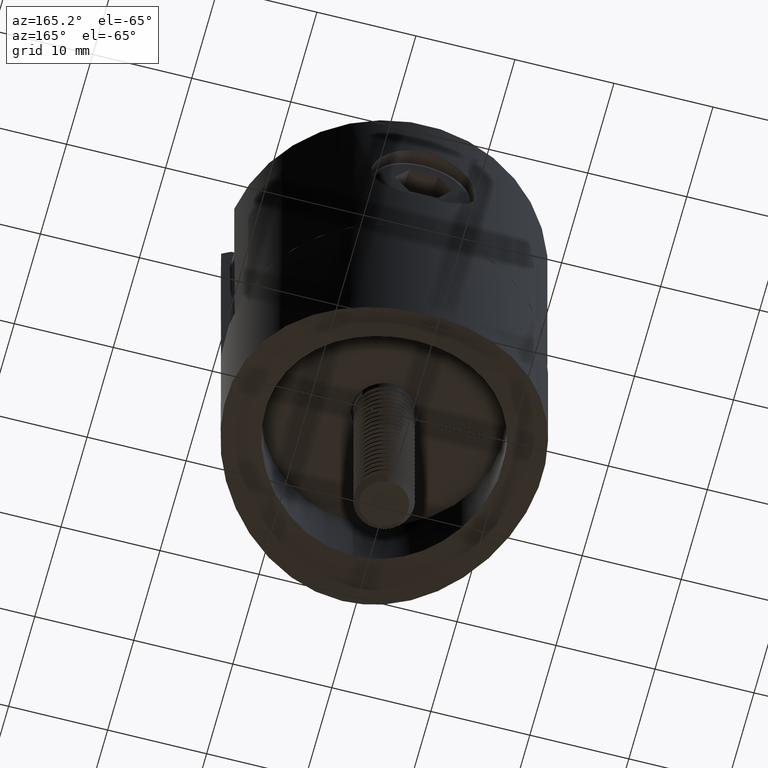
[diagram: clean part render]
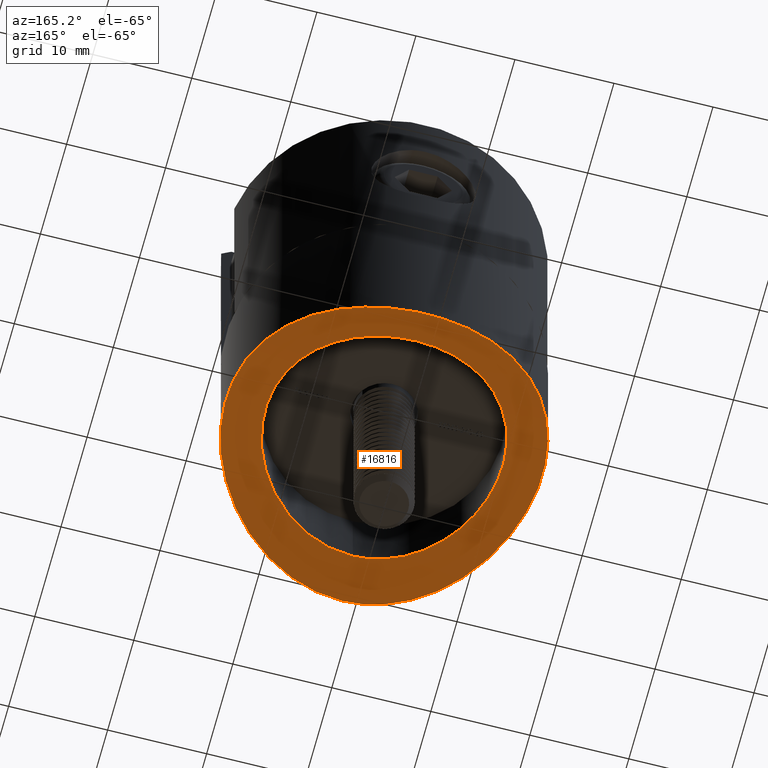
[diagram: same view with one face highlighted and labeled with its STEP entity id]
A machine part, auxiliary view. The second image highlights one B-rep face of the part: STEP entity #16816.
In plain terms, the highlighted cylindrical surface (partial cylindrical patch) has radius 30.15 mm, axis along (1, 0, 0).
Its self-contained STEP definition (entity closure, byte-faithful):
#12 = CARTESIAN_POINT ( 'NONE',  ( 11.58754901106626001, -3.144040531877585032, -0.1619639574629047618 ) ) ;
#208 = CARTESIAN_POINT ( 'NONE',  ( 11.22186866607503930, -4.268736720951023855, -0.3014944365157393724 ) ) ;
#276 = CARTESIAN_POINT ( 'NONE',  ( -7.322687040700339267, -9.514755709804125772, -1.539515491249845658 ) ) ;
#351 = CARTESIAN_POINT ( 'NONE',  ( 1.988812750522771955, 11.84073757494594936, -2.422274191090125761 ) ) ;
#426 = CARTESIAN_POINT ( 'NONE',  ( -10.74784757159862281, 5.351446329594613083, -0.4766383172247922184 ) ) ;
#493 = CARTESIAN_POINT ( 'NONE',  ( -0.7725920073446097547, 11.98168863400033857, -2.482990585800949113 ) ) ;
#565 = CARTESIAN_POINT ( 'NONE',  ( -9.030589511673484893, 7.941128271429761298, -1.058880358299142621 ) ) ;
#619 = B_SPLINE_CURVE_WITH_KNOTS ( 'NONE', 3,
 ( #17813, #11480, #19564, #14740, #21058, #6484, #9901, #8053, #16396, #16466, #6686, #19629, #3234, #13178, #3515, #9968, #3443, #5137, #17879, #208, #19493, #12, #11614, #13244, #9689, #14880, #13037, #14665, #19417, #4932, #16324, #6556, #18428, #7038, #19770, #15085, #11761, #13525, #16665, #15018, #8682, #3795, #20050, #15160, #6894, #351, #2001, #1931, #8545, #10113, #493, #5285, #13454, #11830, #2067, #13382, #18364, #3649, #18298, #10327, #10253, #565, #5417, #19908, #10183, #426, #13308, #3720, #5354, #11906, #16735, #6961, #8616, #19976, #2138, #16802, #11977, #2218, #13591, #3863, #15235, #5488, #6758, #14952, #18159, #8406, #10039, #276, #11688, #3585, #5208, #16597, #6828, #18233, #8467, #19842, #13666, #15587, #17158, #7178 ),
 .UNSPECIFIED., .T., .F.,
 ( 4, 2, 2, 2, 2, 2, 2, 2, 2, 2, 2, 2, 2, 2, 2, 2, 2, 2, 2, 2, 2, 2, 2, 2, 2, 2, 2, 2, 2, 2, 2, 2, 2, 2, 2, 2, 2, 2, 2, 2, 2, 2, 2, 2, 2, 2, 2, 2, 2, 4 ),
 ( 0.000000000000000000, 0.002368471333373011085, 0.003552707000059516628, 0.004736942666746022171, 0.007105414000119036726, 0.008289649666805540967, 0.009473885333492044342, 0.01065812100017854772, 0.01184235666686505282, 0.01421082800023805957, 0.01539506366692456468, 0.01657929933361106806, 0.01894777066698407134, 0.02013200633367057471, 0.02131624200035707462, 0.02368471333373008136, 0.02605318466710308117, 0.02723742033378958455, 0.02842165600047608098, 0.03079012733384908079, 0.03197436300053558417, 0.03315859866722208060, 0.03552707000059508041, 0.03671130566728157685, 0.03789554133396808022, 0.03907977700065458360, 0.04026401266734108697, 0.04263248400071407984, 0.04381671966740058322, 0.04500095533408707965, 0.04736942666746008640, 0.04973789800083307927, 0.05092213366751958264, 0.05210636933420607908, 0.05447484066757908583, 0.05565907633426558920, 0.05684331200095208564, 0.05921178333432509239, 0.06039601900101160270, 0.06158025466769810607, 0.06276449033438460945, 0.06394872600107112670, 0.06631719733444413345, 0.06750143300113063682, 0.06868566866781714020, 0.07105414000119016082, 0.07223837566787666420, 0.07342261133456315370, 0.07460684700124967095, 0.07579108266793617432 ),
 .UNSPECIFIED. ) ;
#638 = DIRECTION ( 'NONE',  ( 0.000000000000000000, 0.000000000000000000, -1.000000000000000000 ) ) ;
#985 = FACE_BOUND ( 'NONE', #5673, .T. ) ;
#994 = CARTESIAN_POINT ( 'NONE',  ( 9.347981288188343285, -12.99552223110337579, -2.942604852742185972 ) ) ;
#1211 = CARTESIAN_POINT ( 'NONE',  ( 8.057680282590142795, -13.86171697003095638, -3.367746590787450423 ) ) ;
#1281 = CARTESIAN_POINT ( 'NONE',  ( -9.734808961894675150, 12.70831711445434031, -2.806802622441028294 ) ) ;
#1350 = CARTESIAN_POINT ( 'NONE',  ( -13.56919194388549954, -8.493767896086113822, -1.217663812366957865 ) ) ;
#1421 = CARTESIAN_POINT ( 'NONE',  ( 2.172336556728580170, 15.88749318704707392, -4.524375341697302488 ) ) ;
#1486 = CARTESIAN_POINT ( 'NONE',  ( -15.86542686692702908, -2.088084433214437485, -0.07121767710406586016 ) ) ;
#1558 = CARTESIAN_POINT ( 'NONE',  ( -12.68438386877813251, -9.765989777195494881, -1.622323003073486536 ) ) ;
#1931 = CARTESIAN_POINT ( 'NONE',  ( 0.8056490428007292426, 11.97946526555242741, -2.482026307086182992 ) ) ;
#2001 = CARTESIAN_POINT ( 'NONE',  ( 1.593286608285616301, 11.90034017213796247, -2.447901521585993834 ) ) ;
#2067 = CARTESIAN_POINT ( 'NONE',  ( -3.878655975107199616, 11.38302881236338315, -2.229501667646038854 ) ) ;
#2138 = CARTESIAN_POINT ( 'NONE',  ( -11.92434088632173683, -1.563850244955632851, -0.03037443106780666341 ) ) ;
#2218 = CARTESIAN_POINT ( 'NONE',  ( -11.36312087890709854, -3.877490141077125863, -0.2479644043786736474 ) ) ;
#2569 = CARTESIAN_POINT ( 'NONE',  ( 1.078985052669396261, -16.00000000000000000, -4.595695078910870812 ) ) ;
#2641 = CARTESIAN_POINT ( 'NONE',  ( 15.87059087586888495, 2.100089571375525210, -0.06850774356989051961 ) ) ;
#2784 = CARTESIAN_POINT ( 'NONE',  ( 9.763319736821554073, -12.68624190333083490, -2.796585216935595142 ) ) ;
#2855 = CARTESIAN_POINT ( 'NONE',  ( 12.02736629144913039, 10.56452989736948211, -1.908315620603530993 ) ) ;
#2924 = CARTESIAN_POINT ( 'NONE',  ( -5.245362431886963606, -15.15138514278004322, -4.079498424652716615 ) ) ;
#2995 = CARTESIAN_POINT ( 'NONE',  ( -10.58561330700593039, -12.04171567547953892, -2.497960455768306609 ) ) ;
#3065 = CARTESIAN_POINT ( 'NONE',  ( -15.74066985114454553, -2.881321613796281600, -0.1368494295909413461 ) ) ;
#3135 = CARTESIAN_POINT ( 'NONE',  ( 4.254421522326797600, 15.43296921659310783, -4.248670770076388159 ) ) ;
#3206 = CARTESIAN_POINT ( 'NONE',  ( -2.147999614626995069, -15.86426675125117747, -4.511130830961285199 ) ) ;
#3234 = CARTESIAN_POINT ( 'NONE',  ( 8.209219941091026485, -8.761187590991552199, -1.299604186638225967 ) ) ;
#3443 = CARTESIAN_POINT ( 'NONE',  ( 9.744780998145234463, -7.013805673719166300, -0.8252518053713892021 ) ) ;
#3515 = CARTESIAN_POINT ( 'NONE',  ( 9.016834077157579230, -7.927645739926238555, -1.059262843862521120 ) ) ;
#3585 = CARTESIAN_POINT ( 'NONE',  ( -6.045073760728127965, -10.39512724240349328, -1.844988715706057603 ) ) ;
#3649 = CARTESIAN_POINT ( 'NONE',  ( -6.016993118291775744, 10.38989198362835786, -1.846080127120568237 ) ) ;
#3693 = CARTESIAN_POINT ( 'NONE',  ( 0.000000000000000000, -16.00000000000000000, -4.595695078910870812 ) ) ;
#3720 = CARTESIAN_POINT ( 'NONE',  ( -11.37397852455903369, 3.905184321878858889, -0.2449736969601668257 ) ) ;
#3795 = CARTESIAN_POINT ( 'NONE',  ( 5.340302310893995319, 10.75336932627156905, -1.982165412871909504 ) ) ;
#3863 = CARTESIAN_POINT ( 'NONE',  ( -10.92932449742695589, -4.970246140903692655, -0.4102433202275903579 ) ) ;
#4002 = CARTESIAN_POINT ( 'NONE',  ( 8.131516293641283255E-16, -16.00000000000000000, -4.595695078910871700 ) ) ;
#4215 = CARTESIAN_POINT ( 'NONE',  ( 10.55590290750044780, -12.03478540401365748, -2.503771067222689162 ) ) ;
#4296 = CARTESIAN_POINT ( 'NONE',  ( 14.96390526560158207, 5.688442302517764837, -0.5373328770635649176 ) ) ;
#4430 = CARTESIAN_POINT ( 'NONE',  ( 15.57105657986728353, -3.717881451341324972, -0.2255591916824621901 ) ) ;
#4493 = CARTESIAN_POINT ( 'NONE',  ( -1.078560265351375724, -15.97265067711983733, -4.578511928934581476 ) ) ;
#4565 = CARTESIAN_POINT ( 'NONE',  ( -3.648580903510718620, 15.58744285368677041, -4.341690479579437323 ) ) ;
#4632 = CARTESIAN_POINT ( 'NONE',  ( -8.066622110606839868, -13.82755415116819897, -3.356348059155455310 ) ) ;
#4699 = CARTESIAN_POINT ( 'NONE',  ( -2.609758756619656950, 15.79460909800114621, -4.467952993187623179 ) ) ;
#4704 = ORIENTED_EDGE ( 'NONE', *, *, #21088, .F. ) ;
#4772 = CARTESIAN_POINT ( 'NONE',  ( -5.166727558273070287, 15.15196072847016850, -4.083310846030086871 ) ) ;
#4932 = CARTESIAN_POINT ( 'NONE',  ( 11.61194887860643377, 3.128061193509684035, -0.1526738820396920937 ) ) ;
#5137 = CARTESIAN_POINT ( 'NONE',  ( 10.40137761311844322, -6.035582049094263546, -0.6027233715706339368 ) ) ;
#5208 = CARTESIAN_POINT ( 'NONE',  ( -5.360375647676671740, -10.76527996336022674, -1.985504278174215376 ) ) ;
#5228 = ORIENTED_EDGE ( 'NONE', *, *, #5551, .T. ) ;
#5285 = CARTESIAN_POINT ( 'NONE',  ( -1.563203420610724814, 11.90437549801485950, -2.449636889568122644 ) ) ;
#5354 = CARTESIAN_POINT ( 'NONE',  ( -11.60436651410400799, 3.156201335318151280, -0.1556167876162860286 ) ) ;
#5417 = CARTESIAN_POINT ( 'NONE',  ( -9.523131426970094182, 7.342531319289173020, -0.9002776579377624877 ) ) ;
#5488 = CARTESIAN_POINT ( 'NONE',  ( -10.38962417867643140, -6.017503546049741026, -0.6044984855176614991 ) ) ;
#5551 = EDGE_CURVE ( 'NONE', #12962, #12962, #619, .T. ) ;
#5673 = EDGE_LOOP ( 'NONE', ( #5228 ) ) ;
#5768 = CARTESIAN_POINT ( 'NONE',  ( 4.198435893910748895, -15.44843400711653203, -4.257895014907222553 ) ) ;
#5903 = CARTESIAN_POINT ( 'NONE',  ( 10.93479450630785266, -11.69152105008194553, -2.356429266868935279 ) ) ;
#6047 = CARTESIAN_POINT ( 'NONE',  ( 15.45464910874660980, 4.175346880858809229, -0.2861245740717265895 ) ) ;
#6114 = CARTESIAN_POINT ( 'NONE',  ( -12.00722806968189005, 10.62433934989705975, -1.923168405348637533 ) ) ;
#6247 = CARTESIAN_POINT ( 'NONE',  ( -8.513327938293816288, -13.55688562490649218, -3.217931215278059920 ) ) ;
#6320 = CARTESIAN_POINT ( 'NONE',  ( -12.99280433940191593, -9.351689605659986526, -1.483467739083009329 ) ) ;
#6388 = CARTESIAN_POINT ( 'NONE',  ( -0.4747260438797594184, 16.00178658817786115, -4.596813683114286064 ) ) ;
#6484 = CARTESIAN_POINT ( 'NONE',  ( 3.885978755221511705, -11.36028401606072613, -2.221840045623407089 ) ) ;
#6556 = CARTESIAN_POINT ( 'NONE',  ( 10.77293897728123007, 5.345333259755970623, -0.4683789715319758851 ) ) ;
#6686 = CARTESIAN_POINT ( 'NONE',  ( 7.320458205167397203, -9.516438573233353182, -1.540080751648398971 ) ) ;
#6758 = CARTESIAN_POINT ( 'NONE',  ( -10.18578774468801562, -6.356269247478546269, -0.6757576906719890975 ) ) ;
#6828 = CARTESIAN_POINT ( 'NONE',  ( -3.893557679914034342, -11.35760473106975077, -2.220752202648601514 ) ) ;
#6894 = CARTESIAN_POINT ( 'NONE',  ( 3.159256538333497843, 11.60400224174884443, -2.321974353454705042 ) ) ;
#6961 = CARTESIAN_POINT ( 'NONE',  ( -11.97958718190897009, 0.8058461534951278926, -0.008141183728601772418 ) ) ;
#7038 = CARTESIAN_POINT ( 'NONE',  ( 9.753008548260284627, 7.002150436307594816, -0.8225009920806044539 ) ) ;
#7163 = AXIS2_PLACEMENT_3D ( 'NONE', #10693, #13807, #638 ) ;
#7178 = CARTESIAN_POINT ( 'NONE',  ( 5.963111948670274387E-16, -12.00000000000000533, -2.490959886503656850 ) ) ;
#7386 = CARTESIAN_POINT ( 'NONE',  ( 9.807960649354527050, 12.68396374225127587, -2.790213268971612592 ) ) ;
#7523 = CARTESIAN_POINT ( 'NONE',  ( 14.35483286966861094, 7.144656730156513369, -0.8419789125931321783 ) ) ;
#7738 = CARTESIAN_POINT ( 'NONE',  ( -15.78656986799467710, -2.618411364351471704, -0.1127370661802067353 ) ) ;
#7817 = CARTESIAN_POINT ( 'NONE',  ( -15.14101137439050149, 5.275762512639045276, -0.4490030845204737719 ) ) ;
#7956 = CARTESIAN_POINT ( 'NONE',  ( 5.258795400126396125, 15.12024180592220013, -4.064876223263797606 ) ) ;
#8025 = CARTESIAN_POINT ( 'NONE',  ( -15.45661574893474821, 4.271535702109969357, -0.2853797541556595818 ) ) ;
#8053 = CARTESIAN_POINT ( 'NONE',  ( 5.345823586510354275, -10.77207880563740794, -1.988139923124309094 ) ) ;
#8167 = CARTESIAN_POINT ( 'NONE',  ( 0.000000000000000000, -12.00000000000000178, -2.490959886503655962 ) ) ;
#8406 = CARTESIAN_POINT ( 'NONE',  ( -8.216674337414604068, -8.754297363609172322, -1.297493442813552722 ) ) ;
#8467 = CARTESIAN_POINT ( 'NONE',  ( -2.759505177683312382, -11.68505071777813598, -2.356309104947240218 ) ) ;
#8545 = CARTESIAN_POINT ( 'NONE',  ( 0.4114582879468181020, 11.99943249448955918, -2.490713671951073405 ) ) ;
#8616 = CARTESIAN_POINT ( 'NONE',  ( -11.99954205327484225, 0.4091774364429863198, -0.0001822672547850000453 ) ) ;
#8682 = CARTESIAN_POINT ( 'NONE',  ( 6.030978729205846101, 10.38176652630970409, -1.843096584256994630 ) ) ;
#9031 = CARTESIAN_POINT ( 'NONE',  ( 7.179271993898176163, 14.33635146221261536, -3.622562466884024612 ) ) ;
#9110 = CARTESIAN_POINT ( 'NONE',  ( 2.134750117507572043, -15.89203472333664990, -4.527243523792710000 ) ) ;
#9246 = CARTESIAN_POINT ( 'NONE',  ( 15.12338735573147552, -5.250259088175047495, -0.4562113082828926358 ) ) ;
#9317 = CARTESIAN_POINT ( 'NONE',  ( 16.00128451681657538, 0.4942595994572297480, 0.0006816657416303562207 ) ) ;
#9463 = CARTESIAN_POINT ( 'NONE',  ( -16.00148916019686496, -0.4848154086778923011, 0.0007902649415198214657 ) ) ;
#9525 = CARTESIAN_POINT ( 'NONE',  ( -9.318566119652702540, 13.01653401029880719, -2.952679422253790431 ) ) ;
#9597 = CARTESIAN_POINT ( 'NONE',  ( -7.149616314173311338, -14.32322005133366360, -3.618011655895734702 ) ) ;
#9663 = CARTESIAN_POINT ( 'NONE',  ( -14.53249558931382523, 6.713981369416491596, -0.7529754713695376855 ) ) ;
#9689 = CARTESIAN_POINT ( 'NONE',  ( 11.99902405958278706, -0.8068032787068092349, -0.0003884337544526847191 ) ) ;
#9901 = CARTESIAN_POINT ( 'NONE',  ( 4.259792312227456357, -11.22533061249984776, -2.167133119778979822 ) ) ;
#9968 = CARTESIAN_POINT ( 'NONE',  ( 9.510622080872369821, -7.327955471179087077, -0.9024424288511778691 ) ) ;
#10039 = CARTESIAN_POINT ( 'NONE',  ( -7.925467415412764893, -9.018829633634368292, -1.379335911693638339 ) ) ;
#10113 = CARTESIAN_POINT ( 'NONE',  ( -0.3776622448792362752, 12.00054371023766997, -2.491195777375309284 ) ) ;
#10183 = CARTESIAN_POINT ( 'NONE',  ( -10.37498474843353158, 6.042672977302484760, -0.6096466733266394655 ) ) ;
#10253 = CARTESIAN_POINT ( 'NONE',  ( -7.922118023854918256, 9.047270923751614902, -1.383671609618075449 ) ) ;
#10327 = CARTESIAN_POINT ( 'NONE',  ( -7.319547696991257624, 9.540846597742982382, -1.545728273114328033 ) ) ;
#10693 = CARTESIAN_POINT ( 'NONE',  ( -16.00000000000000000, 0.000000000000000000, -30.14999999999999858 ) ) ;
#10896 = CARTESIAN_POINT ( 'NONE',  ( 12.97348780974006566, -9.378523343156295766, -1.492229447920222940 ) ) ;
#11021 = CARTESIAN_POINT ( 'NONE',  ( -2.082191821999994197, 15.87308406619947476, -4.516594820043247083 ) ) ;
#11095 = CARTESIAN_POINT ( 'NONE',  ( -14.33191478973646937, -7.132186072379111508, -0.8518883846063125542 ) ) ;
#11166 = CARTESIAN_POINT ( 'NONE',  ( -12.66234008736043037, 9.835894829640427162, -1.635275190400068857 ) ) ;
#11235 = CARTESIAN_POINT ( 'NONE',  ( -15.17065019282069471, -5.193055833661955667, -0.4338978094890954540 ) ) ;
#11307 = CARTESIAN_POINT ( 'NONE',  ( -13.83715886119888872, -8.050148716716391206, -1.090706683784367526 ) ) ;
#11480 = CARTESIAN_POINT ( 'NONE',  ( 0.8015984976627150704, -12.00000000000000000, -2.490959886503656406 ) ) ;
#11614 = CARTESIAN_POINT ( 'NONE',  ( 11.68601990115150890, -2.755675253195629892, -0.1236716745483713437 ) ) ;
#11688 = CARTESIAN_POINT ( 'NONE',  ( -7.010991027877744308, -9.746609748862349321, -1.617938087989102325 ) ) ;
#11761 = CARTESIAN_POINT ( 'NONE',  ( 8.760378726398910132, 8.210150180083305216, -1.137970945690482960 ) ) ;
#11830 = CARTESIAN_POINT ( 'NONE',  ( -3.127648613264199184, 11.61236876926652073, -2.325481028461542810 ) ) ;
#11906 = CARTESIAN_POINT ( 'NONE',  ( -11.83943307401098544, 1.995884954524040911, -0.06363305351737919002 ) ) ;
#11977 = CARTESIAN_POINT ( 'NONE',  ( -11.59313387451377864, -3.123250369471838095, -0.1598021065957421494 ) ) ;
#12310 = CARTESIAN_POINT ( 'NONE',  ( 15.58401580869755598, 3.663117889828333418, -0.2188089841075604169 ) ) ;
#12388 = CARTESIAN_POINT ( 'NONE',  ( 14.94273316656973094, -5.743356605367529788, -0.5480243328852349993 ) ) ;
#12586 = CARTESIAN_POINT ( 'NONE',  ( 15.88870023188751546, -2.161246617080414101, -0.05945806790660285168 ) ) ;
#12660 = CARTESIAN_POINT ( 'NONE',  ( -13.53669685681009938, 8.545628069589628950, -1.232916720163805602 ) ) ;
#12726 = CARTESIAN_POINT ( 'NONE',  ( -11.67672978000988770, -10.95073116363779420, -2.056265577126583644 ) ) ;
#12791 = CARTESIAN_POINT ( 'NONE',  ( -15.97661758998877524, -1.017952428213681815, -0.01243452599184548257 ) ) ;
#12867 = CARTESIAN_POINT ( 'NONE',  ( -10.53570657691873791, 12.05266428351795938, -2.511529521724767289 ) ) ;
#12940 = CARTESIAN_POINT ( 'NONE',  ( -6.681177518968501872, -14.54755792759412181, -3.740828972172310252 ) ) ;
#12962 = VERTEX_POINT ( 'NONE', #8167 ) ;
#13037 = CARTESIAN_POINT ( 'NONE',  ( 11.98117456830764915, 0.7815430999042088933, -0.007509261630885764351 ) ) ;
#13178 = CARTESIAN_POINT ( 'NONE',  ( 8.756549103235498066, -8.214167507932643275, -1.139119304236719143 ) ) ;
#13244 = CARTESIAN_POINT ( 'NONE',  ( 11.92039281358121094, -1.591057539706385970, -0.03193912050580851453 ) ) ;
#13308 = CARTESIAN_POINT ( 'NONE',  ( -10.91902633186320237, 4.992927696284291450, -0.4140316499863215260 ) ) ;
#13382 = CARTESIAN_POINT ( 'NONE',  ( -4.966998117550976310, 10.93083981125547055, -2.050791665276561204 ) ) ;
#13453 = CYLINDRICAL_SURFACE ( 'NONE', #7163, 30.14999999999999147 ) ;
#13454 = CARTESIAN_POINT ( 'NONE',  ( -1.960762305534519134, 11.84536764948929211, -2.424255981918766345 ) ) ;
#13525 = CARTESIAN_POINT ( 'NONE',  ( 7.936653779931537755, 9.033976556055272056, -1.379575065787952415 ) ) ;
#13591 = CARTESIAN_POINT ( 'NONE',  ( -11.23023498187932923, -4.246799138527601158, -0.2983472626684049445 ) ) ;
#13666 = CARTESIAN_POINT ( 'NONE',  ( -1.595708927910928887, -11.90010360617470830, -2.447799461643024976 ) ) ;
#13807 = DIRECTION ( 'NONE',  ( 1.000000000000000000, -0.000000000000000000, -0.000000000000000000 ) ) ;
#13939 = CARTESIAN_POINT ( 'NONE',  ( 12.00413812324768692, -10.59085670693679049, -1.918202365560836897 ) ) ;
#14009 = CARTESIAN_POINT ( 'NONE',  ( 15.14519074717372149, 5.186800351054912106, -0.4450899824766906820 ) ) ;
#14151 = CARTESIAN_POINT ( 'NONE',  ( 14.33481735883850661, -7.183222788110466439, -0.8517706277689072181 ) ) ;
#14222 = CARTESIAN_POINT ( 'NONE',  ( 11.68239266804464371, 10.94456769242637328, -2.053888431004975423 ) ) ;
#14286 = CARTESIAN_POINT ( 'NONE',  ( -8.032525227709426119, 13.87594563035724349, -3.375231095988488139 ) ) ;
#14351 = CARTESIAN_POINT ( 'NONE',  ( -12.02635697232644318, -10.56574126282583670, -1.908753166046716077 ) ) ;
#14426 = CARTESIAN_POINT ( 'NONE',  ( -2.682522744732567244, -15.78251214136437319, -4.460500201789057151 ) ) ;
#14495 = CARTESIAN_POINT ( 'NONE',  ( 1.119895356453560975, 15.99612420906701082, -4.593268399023394011 ) ) ;
#14665 = CARTESIAN_POINT ( 'NONE',  ( 11.90274655390630265, 1.576064125199734489, -0.03859718639906839499 ) ) ;
#14740 = CARTESIAN_POINT ( 'NONE',  ( 2.745982449512752499, -11.68822410790022914, -2.357645131477208889 ) ) ;
#14880 = CARTESIAN_POINT ( 'NONE',  ( 12.00047455879498592, 0.3814286852858597143, 0.0001888790028280833947 ) ) ;
#14952 = CARTESIAN_POINT ( 'NONE',  ( -9.533721927396459961, -7.329247513639577605, -0.8968445342130576536 ) ) ;
#15018 = CARTESIAN_POINT ( 'NONE',  ( 6.369058602888105547, 10.17776923945282874, -1.768869877162314586 ) ) ;
#15085 = CARTESIAN_POINT ( 'NONE',  ( 9.023965994835860371, 7.919669674553746930, -1.057062816436387997 ) ) ;
#15160 = CARTESIAN_POINT ( 'NONE',  ( 3.907981577304560528, 11.37261256764302964, -2.225265224634728867 ) ) ;
#15163 = EDGE_LOOP ( 'NONE', ( #4704 ) ) ;
#15235 = CARTESIAN_POINT ( 'NONE',  ( -10.76129999144759530, -5.324383719730293230, -0.4717597106218186509 ) ) ;
#15587 = CARTESIAN_POINT ( 'NONE',  ( -0.8028224684879569084, -11.97974243898414315, -2.482145880089654533 ) ) ;
#15663 = CARTESIAN_POINT ( 'NONE',  ( 3.686522043205399779, -15.57844782553591223, -4.336254773498186665 ) ) ;
#15803 = CARTESIAN_POINT ( 'NONE',  ( 15.97540495238118297, 1.035600098709676731, -0.01307771160071849459 ) ) ;
#15870 = CARTESIAN_POINT ( 'NONE',  ( 5.747963290289715310, 14.94085499280734197, -3.961324853779486066 ) ) ;
#15939 = CARTESIAN_POINT ( 'NONE',  ( 8.131516293641283255E-16, -16.00000000000000000, -4.595695078910871700 ) ) ;
#16015 = CARTESIAN_POINT ( 'NONE',  ( -14.30686514344138871, 7.182235014138724338, -0.8641419574765548672 ) ) ;
#16147 = CARTESIAN_POINT ( 'NONE',  ( -10.91713552924337982, 11.70806047007418904, -2.363387267377642598 ) ) ;
#16324 = CARTESIAN_POINT ( 'NONE',  ( 11.38264105991425978, 3.881273549652586308, -0.2416912853933541883 ) ) ;
#16396 = CARTESIAN_POINT ( 'NONE',  ( 6.031289577702977134, -10.40352440785837373, -1.848033145277831579 ) ) ;
#16466 = CARTESIAN_POINT ( 'NONE',  ( 7.004347930114951382, -9.751489814005228851, -1.619595456863457184 ) ) ;
#16597 = CARTESIAN_POINT ( 'NONE',  ( -4.266495602272172505, -11.22288889810572599, -2.166144694318079988 ) ) ;
#16665 = CARTESIAN_POINT ( 'NONE',  ( 7.339541135919652959, 9.525686989841942065, -1.540632262569246569 ) ) ;
#16735 = CARTESIAN_POINT ( 'NONE',  ( -11.89936628542273134, 1.601555205856364683, -0.03993421053791375297 ) ) ;
#16802 = CARTESIAN_POINT ( 'NONE',  ( -11.69059341228584437, -2.736587100583821375, -0.1218909346384502851 ) ) ;
#16816 = ADVANCED_FACE ( 'NONE', ( #985, #18296 ), #13453, .F. ) ;
#17154 = CARTESIAN_POINT ( 'NONE',  ( 10.59754280818636119, 12.03077421143807335, -2.493298082391059545 ) ) ;
#17158 = CARTESIAN_POINT ( 'NONE',  ( -0.4007992488313566470, -12.00000000000000711, -2.490959886503656850 ) ) ;
#17234 = CARTESIAN_POINT ( 'NONE',  ( 5.707174266713949784, -14.95659738328373045, -3.970310955185019974 ) ) ;
#17311 = CARTESIAN_POINT ( 'NONE',  ( 15.79198501390512455, 2.625488663299035075, -0.1100027033371900886 ) ) ;
#17381 = CARTESIAN_POINT ( 'NONE',  ( 11.65891275566721852, -10.96955553864558119, -2.063649403195169985 ) ) ;
#17447 = CARTESIAN_POINT ( 'NONE',  ( 13.86164403078854868, 8.057808861475999507, -1.082748097819691946 ) ) ;
#17514 = CARTESIAN_POINT ( 'NONE',  ( -0.5394925263346930233, -15.99999999999999645, -4.595695078910871700 ) ) ;
#17578 = CARTESIAN_POINT ( 'NONE',  ( 3.735376321208383477, 15.56694688145358541, -4.329304627602067690 ) ) ;
#17714 = CARTESIAN_POINT ( 'NONE',  ( -5.664061859750787242, 14.97315492476320209, -3.979769334319526397 ) ) ;
#17786 = CARTESIAN_POINT ( 'NONE',  ( -4.159834161166363842, 15.45874404116045753, -4.264068878313823419 ) ) ;
#17792 = VERTEX_POINT ( 'NONE', #3693 ) ;
#17813 = CARTESIAN_POINT ( 'NONE',  ( 5.963111948670274387E-16, -12.00000000000000533, -2.490959886503656850 ) ) ;
#17879 = CARTESIAN_POINT ( 'NONE',  ( 10.77002619710670395, -5.349423699742390959, -0.4694043802146429800 ) ) ;
#18159 = CARTESIAN_POINT ( 'NONE',  ( -9.041624641885528391, -7.928105815750519092, -1.055377369242455288 ) ) ;
#18233 = CARTESIAN_POINT ( 'NONE',  ( -3.140794388474386967, -11.58837293339161079, -2.315710346593849778 ) ) ;
#18296 = FACE_OUTER_BOUND ( 'NONE', #15163, .T. ) ;
#18298 = CARTESIAN_POINT ( 'NONE',  ( -6.351086464669634779, 10.18894419411740593, -1.772890916868312017 ) ) ;
#18364 = CARTESIAN_POINT ( 'NONE',  ( -5.325174507114273759, 10.76088184517494817, -1.985036703094600341 ) ) ;
#18428 = CARTESIAN_POINT ( 'NONE',  ( 10.40246812094101259, 6.032727649520546187, -0.6022770373841805913 ) ) ;
#18776 = CARTESIAN_POINT ( 'NONE',  ( 8.085586332512241015, 13.84566076334108864, -3.359357152009605496 ) ) ;
#18847 = CARTESIAN_POINT ( 'NONE',  ( 12.66079018387229205, -9.796426378472894214, -1.632800388713600448 ) ) ;
#18914 = CARTESIAN_POINT ( 'NONE',  ( 12.99541528851692362, 9.348130625963394280, -1.482288493879623914 ) ) ;
#18985 = CARTESIAN_POINT ( 'NONE',  ( 13.84230512970745330, -8.090916690121192190, -1.091995602439714164 ) ) ;
#19055 = CARTESIAN_POINT ( 'NONE',  ( 5.211707061231645177, -15.13668017550152456, -4.074415114980068253 ) ) ;
#19121 = CARTESIAN_POINT ( 'NONE',  ( -13.80984494451973177, 8.096855725481423960, -1.103710935028307416 ) ) ;
#19188 = CARTESIAN_POINT ( 'NONE',  ( -15.88877283430558940, 2.167921927664983706, -0.05944210888662986025 ) ) ;
#19260 = CARTESIAN_POINT ( 'NONE',  ( -15.89843247462603415, -1.819884348102272842, -0.05378485721018724103 ) ) ;
#19321 = CARTESIAN_POINT ( 'NONE',  ( -7.121600054935708357, 14.36630339599281392, -3.638734607382137831 ) ) ;
#19350 = B_SPLINE_CURVE_WITH_KNOTS ( 'NONE', 3,
 ( #4002, #2569, #9110, #15663, #5768, #19055, #17234, #20541, #1211, #994, #2784, #4215, #5903, #17381, #13939, #18847, #10896, #18985, #14151, #12388, #9246, #20609, #4430, #12586, #20468, #9317, #15803, #2641, #17311, #12310, #6047, #14009, #4296, #7523, #17447, #18914, #20680, #2855, #14222, #17154, #7386, #18776, #9031, #15870, #7956, #3135, #17578, #1421, #14495, #6388, #20896, #11021, #4699, #4565, #17786, #4772, #17714, #19321, #14286, #9525, #1281, #12867, #16147, #6114, #11166, #12660, #19121, #16015, #9663, #7817, #8025, #19188, #21031, #9463, #12791, #19260, #1486, #7738, #3065, #20823, #11235, #19394, #11095, #11307, #1350, #6320, #1558, #14351, #12726, #2995, #20755, #6247, #4632, #9597, #12940, #2924, #20959, #14426, #3206, #4493, #17514, #15939 ),
 .UNSPECIFIED., .T., .F.,
 ( 4, 2, 2, 2, 2, 2, 2, 2, 2, 2, 2, 2, 2, 2, 2, 2, 2, 2, 2, 2, 2, 2, 2, 2, 2, 2, 2, 2, 2, 2, 2, 2, 2, 2, 2, 2, 2, 2, 2, 2, 2, 2, 2, 2, 2, 2, 2, 2, 2, 2, 4 ),
 ( 0.000000000000000000, 0.003184822541556455843, 0.004777233812334682680, 0.006369645083112910819, 0.009554467624669363626, 0.01114687889544759176, 0.01273929016622581817, 0.01433170143700404631, 0.01592411270778227445, 0.01910893524933872725, 0.02070134652011695192, 0.02229375779089517659, 0.02547858033245162940, 0.02707099160322986101, 0.02866340287400808914, 0.03025581414478631034, 0.03184822541556454195, 0.03503304795712099129, 0.03662545922789921943, 0.03821787049867743369, 0.04140269304023387609, 0.04458751558179031849, 0.04617992685256853969, 0.04777233812334676089, 0.05095716066490319635, 0.05254957193568141754, 0.05414198320645963874, 0.05573439447723785301, 0.05732680574801607420, 0.06051162828957250273, 0.06210403956035072393, 0.06369645083112893125, 0.06688127337268537365, 0.06847368464346358097, 0.07006609591424180217, 0.07325091845579825844, 0.07643574099735468697, 0.07802815226813290816, 0.07882435790352201876, 0.07962056353891112936, 0.08280538608046758564, 0.08439779735124582072, 0.08599020862202404192, 0.08758261989280226312, 0.08917503116358049819, 0.09235985370513695447, 0.09395226497591517567, 0.09554467624669339687, 0.09872949878824985315, 0.1003219100590280882, 0.1019143213298062955 ),
 .UNSPECIFIED. ) ;
#19394 = CARTESIAN_POINT ( 'NONE',  ( -14.55965570113859009, -6.655489456487617694, -0.7395431068015156928 ) ) ;
#19417 = CARTESIAN_POINT ( 'NONE',  ( 11.84410175311063007, 1.967939165571280347, -0.06179341162036594559 ) ) ;
#19493 = CARTESIAN_POINT ( 'NONE',  ( 11.35549526913558260, -3.899873093139219371, -0.2508647882250326089 ) ) ;
#19564 = CARTESIAN_POINT ( 'NONE',  ( 1.587938052164499236, -11.92050596160316722, -2.456095880916426388 ) ) ;
#19629 = CARTESIAN_POINT ( 'NONE',  ( 7.922177217439438479, -9.021686072304319737, -1.380237002573112992 ) ) ;
#19770 = CARTESIAN_POINT ( 'NONE',  ( 9.520764116228599860, 7.314928617090808771, -0.8991541823541377987 ) ) ;
#19842 = CARTESIAN_POINT ( 'NONE',  ( -1.986962083813529123, -11.84091469356129345, -2.422353091785983459 ) ) ;
#19908 = CARTESIAN_POINT ( 'NONE',  ( -10.17320646849400667, 6.376250444964795427, -0.6800990656788018507 ) ) ;
#19976 = CARTESIAN_POINT ( 'NONE',  ( -12.00089257511238827, -0.7773802491922439106, 0.0003552535815719478078 ) ) ;
#20050 = CARTESIAN_POINT ( 'NONE',  ( 4.987686912832506536, 10.92131578222721977, -2.047090563307753630 ) ) ;
#20468 = CARTESIAN_POINT ( 'NONE',  ( 15.99728122124968799, -1.108417108912988391, -0.001442798123056456211 ) ) ;
#20541 = CARTESIAN_POINT ( 'NONE',  ( 7.149093687759134674, -14.35189997975213494, -3.630966042357185675 ) ) ;
#20609 = CARTESIAN_POINT ( 'NONE',  ( 15.43826453734253690, -4.235806142813309805, -0.2946109775501924433 ) ) ;
#20680 = CARTESIAN_POINT ( 'NONE',  ( 12.68375825371755106, 9.766734788164997738, -1.622593526303380607 ) ) ;
#20755 = CARTESIAN_POINT ( 'NONE',  ( -9.796220318447430131, -12.69242566255005578, -2.794255844744371498 ) ) ;
#20823 = CARTESIAN_POINT ( 'NONE',  ( -15.47958803394810623, -4.184922935612913619, -0.2734462748832465762 ) ) ;
#20896 = CARTESIAN_POINT ( 'NONE',  ( -1.009605479569808395, 15.97720305096802029, -4.581362148901881426 ) ) ;
#20959 = CARTESIAN_POINT ( 'NONE',  ( -4.247828937922082382, -15.46254896152112934, -4.265749245710448001 ) ) ;
#21031 = CARTESIAN_POINT ( 'NONE',  ( -15.99681565073991507, 1.110267685650467406, -0.001689865099626592596 ) ) ;
#21058 = CARTESIAN_POINT ( 'NONE',  ( 3.128395957867939892, -11.59180842415855928, -2.317139047154785469 ) ) ;
#21088 = EDGE_CURVE ( 'NONE', #17792, #17792, #19350, .T. ) ;